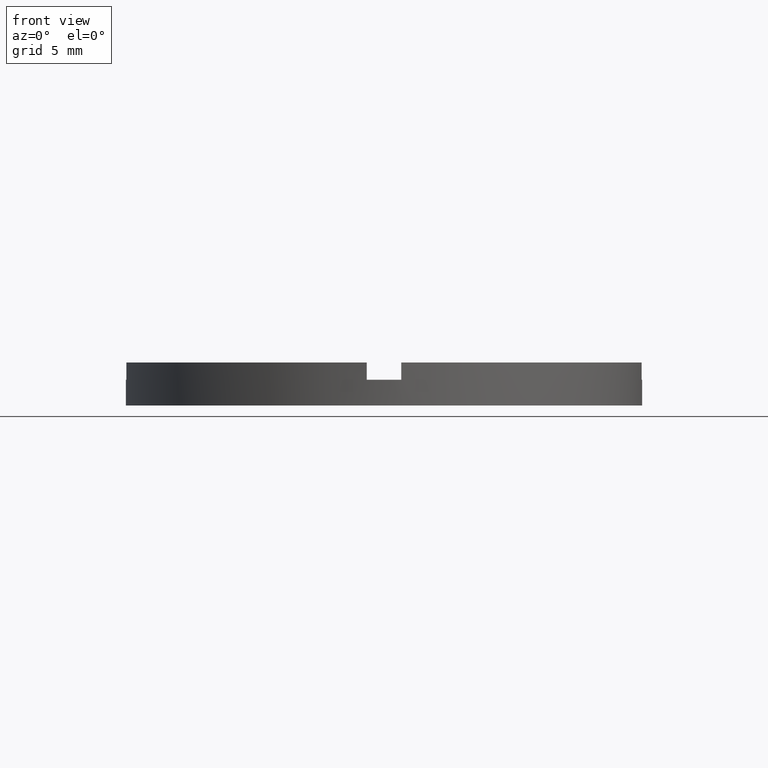
[diagram: clean part render]
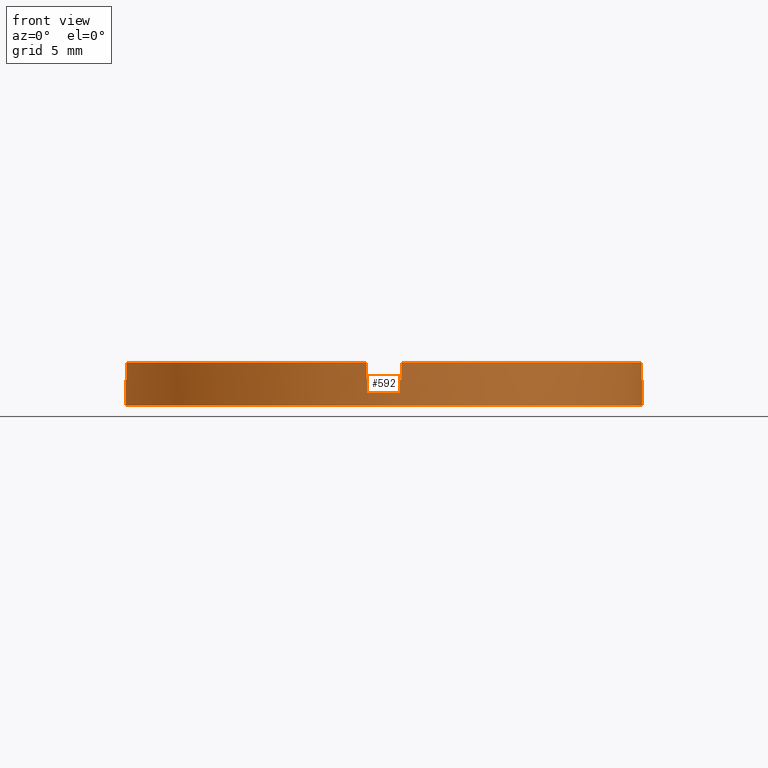
[diagram: same view with one face highlighted and labeled with its STEP entity id]
A machine part, front view. The second image highlights one B-rep face of the part: STEP entity #592.
In plain terms, the highlighted cylindrical surface (partial cylindrical patch) has radius 15 mm, axis along (-0, -0, -1).
Its self-contained STEP definition (entity closure, byte-faithful):
#6 = EDGE_CURVE ( 'NONE', #620, #517, #241, .T. ) ;
#8 = CIRCLE ( 'NONE', #581, 15.00000000000000000 ) ;
#9 = DIRECTION ( 'NONE',  ( 1.000000000000000000, 0.000000000000000000, 0.000000000000000000 ) ) ;
#12 = EDGE_CURVE ( 'NONE', #454, #140, #8, .T. ) ;
#16 = CARTESIAN_POINT ( 'NONE',  ( -14.96662954709576354, -1.000000000000023093, 1.500000000000000000 ) ) ;
#25 = CARTESIAN_POINT ( 'NONE',  ( 0.000000000000000000, 0.000000000000000000, 1.500000000000000000 ) ) ;
#33 = CARTESIAN_POINT ( 'NONE',  ( -1.000000000000162981, -14.96662954709575466, 2.500000000000000000 ) ) ;
#43 = DIRECTION ( 'NONE',  ( 0.000000000000000000, 0.000000000000000000, 1.000000000000000000 ) ) ;
#50 = CARTESIAN_POINT ( 'NONE',  ( 0.000000000000000000, 0.000000000000000000, 1.500000000000000000 ) ) ;
#69 = DIRECTION ( 'NONE',  ( -0.000000000000000000, -0.000000000000000000, -1.000000000000000000 ) ) ;
#77 = CARTESIAN_POINT ( 'NONE',  ( -1.000000000000162981, -14.96662954709575466, 2.500000000000000000 ) ) ;
#84 = EDGE_CURVE ( 'NONE', #94, #507, #414, .T. ) ;
#85 = ORIENTED_EDGE ( 'NONE', *, *, #608, .F. ) ;
#87 = DIRECTION ( 'NONE',  ( -1.000000000000000000, 0.000000000000000000, 0.000000000000000000 ) ) ;
#94 = VERTEX_POINT ( 'NONE', #774 ) ;
#96 = VECTOR ( 'NONE', #746, 1000.000000000000000 ) ;
#100 = VERTEX_POINT ( 'NONE', #33 ) ;
#110 = ORIENTED_EDGE ( 'NONE', *, *, #276, .T. ) ;
#121 = AXIS2_PLACEMENT_3D ( 'NONE', #596, #552, #199 ) ;
#122 = LINE ( 'NONE', #545, #649 ) ;
#127 = CARTESIAN_POINT ( 'NONE',  ( 15.00000000000000000, 1.836970198721029589E-15, 1.500000000000000000 ) ) ;
#140 = VERTEX_POINT ( 'NONE', #127 ) ;
#152 = VECTOR ( 'NONE', #218, 1000.000000000000000 ) ;
#156 = VERTEX_POINT ( 'NONE', #317 ) ;
#159 = ORIENTED_EDGE ( 'NONE', *, *, #644, .T. ) ;
#171 = ORIENTED_EDGE ( 'NONE', *, *, #84, .F. ) ;
#175 = CIRCLE ( 'NONE', #597, 15.00000000000000000 ) ;
#187 = AXIS2_PLACEMENT_3D ( 'NONE', #350, #292, #87 ) ;
#190 = CARTESIAN_POINT ( 'NONE',  ( 0.9999999999998369082, -14.96662954709577775, 1.500000000000000000 ) ) ;
#199 = DIRECTION ( 'NONE',  ( 1.000000000000000000, 0.000000000000000000, 0.000000000000000000 ) ) ;
#202 = CYLINDRICAL_SURFACE ( 'NONE', #187, 15.00000000000000000 ) ;
#206 = VECTOR ( 'NONE', #69, 1000.000000000000000 ) ;
#212 = EDGE_CURVE ( 'NONE', #94, #156, #692, .T. ) ;
#215 = CIRCLE ( 'NONE', #121, 15.00000000000000000 ) ;
#218 = DIRECTION ( 'NONE',  ( 0.000000000000000000, 0.000000000000000000, 1.000000000000000000 ) ) ;
#241 = CIRCLE ( 'NONE', #319, 15.00000000000000000 ) ;
#243 = DIRECTION ( 'NONE',  ( -0.000000000000000000, -0.000000000000000000, -1.000000000000000000 ) ) ;
#254 = DIRECTION ( 'NONE',  ( 1.000000000000000000, 0.000000000000000000, 0.000000000000000000 ) ) ;
#276 = EDGE_CURVE ( 'NONE', #620, #100, #447, .T. ) ;
#282 = DIRECTION ( 'NONE',  ( -0.000000000000000000, -0.000000000000000000, -1.000000000000000000 ) ) ;
#292 = DIRECTION ( 'NONE',  ( -0.000000000000000000, -0.000000000000000000, -1.000000000000000000 ) ) ;
#297 = DIRECTION ( 'NONE',  ( 0.000000000000000000, 0.000000000000000000, 1.000000000000000000 ) ) ;
#317 = CARTESIAN_POINT ( 'NONE',  ( -15.00000000000000000, 0.000000000000000000, 0.000000000000000000 ) ) ;
#319 = AXIS2_PLACEMENT_3D ( 'NONE', #25, #522, #254 ) ;
#325 = EDGE_CURVE ( 'NONE', #348, #503, #699, .T. ) ;
#332 = DIRECTION ( 'NONE',  ( 0.000000000000000000, 0.000000000000000000, 1.000000000000000000 ) ) ;
#348 = VERTEX_POINT ( 'NONE', #622 ) ;
#350 = CARTESIAN_POINT ( 'NONE',  ( 0.000000000000000000, 0.000000000000000000, 2.500000000000000000 ) ) ;
#351 = VERTEX_POINT ( 'NONE', #523 ) ;
#364 = ORIENTED_EDGE ( 'NONE', *, *, #6, .F. ) ;
#365 = ORIENTED_EDGE ( 'NONE', *, *, #638, .T. ) ;
#378 = VECTOR ( 'NONE', #282, 1000.000000000000000 ) ;
#406 = LINE ( 'NONE', #471, #152 ) ;
#414 = CIRCLE ( 'NONE', #688, 15.00000000000000000 ) ;
#421 = ORIENTED_EDGE ( 'NONE', *, *, #758, .T. ) ;
#433 = CARTESIAN_POINT ( 'NONE',  ( 14.96662954709575466, -1.000000000000159428, 2.500000000000000000 ) ) ;
#440 = ORIENTED_EDGE ( 'NONE', *, *, #212, .T. ) ;
#441 = CARTESIAN_POINT ( 'NONE',  ( -1.000000000000162981, -14.96662954709575466, 1.500000000000000000 ) ) ;
#447 = LINE ( 'NONE', #77, #462 ) ;
#453 = CARTESIAN_POINT ( 'NONE',  ( -14.96662954709576354, -1.000000000000023093, 2.500000000000000000 ) ) ;
#454 = VERTEX_POINT ( 'NONE', #647 ) ;
#462 = VECTOR ( 'NONE', #43, 1000.000000000000000 ) ;
#471 = CARTESIAN_POINT ( 'NONE',  ( 14.96662954709575466, -1.000000000000159428, 2.500000000000000000 ) ) ;
#485 = EDGE_CURVE ( 'NONE', #710, #100, #215, .T. ) ;
#501 = ORIENTED_EDGE ( 'NONE', *, *, #485, .F. ) ;
#503 = VERTEX_POINT ( 'NONE', #433 ) ;
#507 = VERTEX_POINT ( 'NONE', #16 ) ;
#511 = CARTESIAN_POINT ( 'NONE',  ( 0.000000000000000000, 0.000000000000000000, 0.000000000000000000 ) ) ;
#517 = VERTEX_POINT ( 'NONE', #190 ) ;
#522 = DIRECTION ( 'NONE',  ( -0.000000000000000000, 0.000000000000000000, 1.000000000000000000 ) ) ;
#523 = CARTESIAN_POINT ( 'NONE',  ( 15.00000000000000000, 1.836970198721029589E-15, 0.000000000000000000 ) ) ;
#531 = CARTESIAN_POINT ( 'NONE',  ( 0.9999999999998369082, -14.96662954709577775, 2.500000000000000000 ) ) ;
#534 = DIRECTION ( 'NONE',  ( 0.000000000000000000, 0.000000000000000000, 1.000000000000000000 ) ) ;
#545 = CARTESIAN_POINT ( 'NONE',  ( 15.00000000000000000, 1.836970198721029589E-15, 2.500000000000000000 ) ) ;
#552 = DIRECTION ( 'NONE',  ( 0.000000000000000000, 0.000000000000000000, 1.000000000000000000 ) ) ;
#554 = DIRECTION ( 'NONE',  ( 1.000000000000000000, 0.000000000000000000, 0.000000000000000000 ) ) ;
#572 = EDGE_CURVE ( 'NONE', #156, #351, #175, .T. ) ;
#576 = CARTESIAN_POINT ( 'NONE',  ( 0.000000000000000000, 0.000000000000000000, 2.500000000000000000 ) ) ;
#578 = CARTESIAN_POINT ( 'NONE',  ( 0.000000000000000000, 0.000000000000000000, 1.500000000000000000 ) ) ;
#581 = AXIS2_PLACEMENT_3D ( 'NONE', #50, #332, #9 ) ;
#592 = ADVANCED_FACE ( 'NONE', ( #725 ), #202, .T. ) ;
#596 = CARTESIAN_POINT ( 'NONE',  ( 0.000000000000000000, 0.000000000000000000, 2.500000000000000000 ) ) ;
#597 = AXIS2_PLACEMENT_3D ( 'NONE', #511, #297, #554 ) ;
#608 = EDGE_CURVE ( 'NONE', #140, #351, #122, .T. ) ;
#612 = ORIENTED_EDGE ( 'NONE', *, *, #572, .T. ) ;
#614 = AXIS2_PLACEMENT_3D ( 'NONE', #576, #534, #698 ) ;
#620 = VERTEX_POINT ( 'NONE', #441 ) ;
#622 = CARTESIAN_POINT ( 'NONE',  ( 0.9999999999998369082, -14.96662954709577775, 2.500000000000000000 ) ) ;
#626 = DIRECTION ( 'NONE',  ( 0.000000000000000000, 0.000000000000000000, 1.000000000000000000 ) ) ;
#638 = EDGE_CURVE ( 'NONE', #348, #517, #645, .T. ) ;
#644 = EDGE_CURVE ( 'NONE', #710, #507, #652, .T. ) ;
#645 = LINE ( 'NONE', #531, #378 ) ;
#647 = CARTESIAN_POINT ( 'NONE',  ( 14.96662954709575466, -1.000000000000159428, 1.500000000000000000 ) ) ;
#649 = VECTOR ( 'NONE', #243, 1000.000000000000000 ) ;
#652 = LINE ( 'NONE', #453, #96 ) ;
#662 = CARTESIAN_POINT ( 'NONE',  ( -14.96662954709576354, -1.000000000000023093, 2.500000000000000000 ) ) ;
#688 = AXIS2_PLACEMENT_3D ( 'NONE', #578, #626, #713 ) ;
#692 = LINE ( 'NONE', #762, #206 ) ;
#698 = DIRECTION ( 'NONE',  ( 1.000000000000000000, 0.000000000000000000, 0.000000000000000000 ) ) ;
#699 = CIRCLE ( 'NONE', #614, 15.00000000000000000 ) ;
#710 = VERTEX_POINT ( 'NONE', #662 ) ;
#713 = DIRECTION ( 'NONE',  ( 1.000000000000000000, 0.000000000000000000, 0.000000000000000000 ) ) ;
#725 = FACE_OUTER_BOUND ( 'NONE', #759, .T. ) ;
#746 = DIRECTION ( 'NONE',  ( -0.000000000000000000, -0.000000000000000000, -1.000000000000000000 ) ) ;
#758 = EDGE_CURVE ( 'NONE', #454, #503, #406, .T. ) ;
#759 = EDGE_LOOP ( 'NONE', ( #85, #770, #421, #766, #365, #364, #110, #501, #159, #171, #440, #612 ) ) ;
#762 = CARTESIAN_POINT ( 'NONE',  ( -15.00000000000000000, 0.000000000000000000, 2.500000000000000000 ) ) ;
#766 = ORIENTED_EDGE ( 'NONE', *, *, #325, .F. ) ;
#770 = ORIENTED_EDGE ( 'NONE', *, *, #12, .F. ) ;
#774 = CARTESIAN_POINT ( 'NONE',  ( -15.00000000000000000, 0.000000000000000000, 1.500000000000000000 ) ) ;